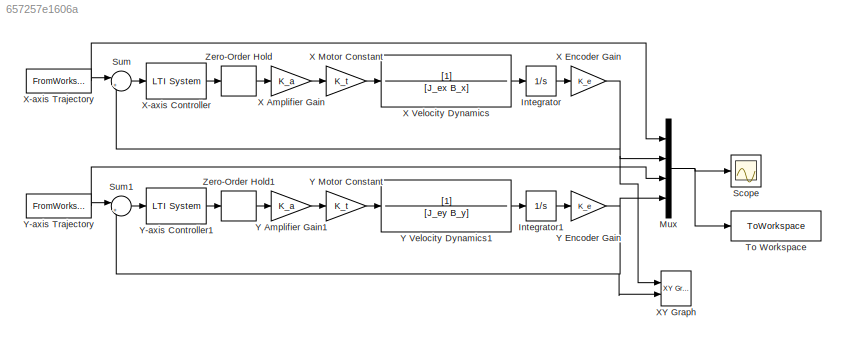
MODEL slx_657257e1606a
KIND model
CONFIG AbsTol = auto
CONFIG EnableMultiTasking = off
CONFIG FixedStep = auto
CONFIG MaxStep = auto
CONFIG MinStep = auto
CONFIG RelTol = 1e-3
CONFIG SampleTimeConstraint = Unconstrained
CONFIG SolverName = VariableStepAuto
CONFIG StartTime = 0.0
CONFIG StopTime = 2
BLOCK [Integrator] Integrator
  Ports = [1, 1]
BLOCK [Integrator] Integrator1
  Ports = [1, 1]
BLOCK [Mux] Mux
  DisplayOption = bar
  Ports = [4, 1]
BLOCK [Scope] Scope
  Floating = off
  NumInputPorts = 1
  Ports = [1]
  ScopeSpecificationString = Simulink.scopes.TimeScopeBlockCfg('CurrentConfiguration', extmgr.ConfigurationSet(extmgr.Configuration('Core','General UI',true),extmgr.Configuration('Core','Source UI',true),extmgr.Configuration('Sources','WiredSimulink',true),extmgr.Configuration('Visuals','Time Domain',true,'SerializedDisplays',{struct('MinYLimReal','-15.09066','MaxYLimReal','135.07444','YLabelReal','','MinYLimMag','0.00000','M...<+1457ch>
BLOCK [Sum] Sum
  Inputs = |+-
  Ports = [2, 1]
BLOCK [Sum] Sum1
  Inputs = |+-
  Ports = [2, 1]
BLOCK [ToWorkspace] To Workspace
  FixptAsFi = on
  MaxDataPoints = inf
  Ports = [1]
  SampleTime = -1
  SaveFormat = Timeseries
  VariableName = simout
BLOCK [Gain] X Amplifier Gain
  Gain = K_a
BLOCK [Gain] X Encoder Gain
  Gain = K_e
BLOCK [Gain] X Motor Constant
  Gain = K_t
BLOCK [TransferFcn] X Velocity Dynamics
  Denominator = [J_ex B_x]
BLOCK [Reference] X-axis Controller  REF=cstblocks/LTI System
  Ports = [1, 1]
  SourceBlock = cstblocks/LTI System
  SourceProductBaseCode = CT
  SourceType = LTI Block
BLOCK [FromWorkspace] X-axis Trajectory
  VariableName = xr
BLOCK [Reference] XY Graph  REF=simulink/Sinks/XY Graph
  Commented = on
  Ports = [2]
  SourceBlock = simulink/Sinks/XY Graph
  SourceProductBaseCode = SL
  SourceType = XY scope.
BLOCK [Gain] Y Amplifier Gain1
  Gain = K_a
BLOCK [Gain] Y Encoder Gain
  Gain = K_e
BLOCK [Gain] Y Motor Constant
  Gain = K_t
BLOCK [TransferFcn] Y Velocity Dynamics1
  Denominator = [J_ey B_y]
BLOCK [Reference] Y-axis Controller1  REF=cstblocks/LTI System
  Ports = [1, 1]
  SourceBlock = cstblocks/LTI System
  SourceProductBaseCode = CT
  SourceType = LTI Block
BLOCK [FromWorkspace] Y-axis Trajectory
  VariableName = yr
BLOCK [ZeroOrderHold] Zero-Order Hold
  SampleTime = T_i
BLOCK [ZeroOrderHold] Zero-Order Hold1
  SampleTime = T_i
LINE Integrator1:1 -> Y Encoder Gain:1
LINE Integrator:1 -> X Encoder Gain:1
NET Mux:1 -> Scope:1, To Workspace:1
LINE Sum1:1 -> Y-axis Controller1:1
LINE Sum:1 -> X-axis Controller:1
LINE X Amplifier Gain:1 -> X Motor Constant:1
NET X Encoder Gain:1 -> Mux:2, Sum:2, XY Graph:1
LINE X Motor Constant:1 -> X Velocity Dynamics:1
LINE X Velocity Dynamics:1 -> Integrator:1
LINE X-axis Controller:1 -> Zero-Order Hold:1
NET X-axis Trajectory:1 -> Mux:1, Sum:1
LINE Y Amplifier Gain1:1 -> Y Motor Constant:1
NET Y Encoder Gain:1 -> Mux:4, Sum1:2, XY Graph:2
LINE Y Motor Constant:1 -> Y Velocity Dynamics1:1
LINE Y Velocity Dynamics1:1 -> Integrator1:1
LINE Y-axis Controller1:1 -> Zero-Order Hold1:1
NET Y-axis Trajectory:1 -> Mux:3, Sum1:1
LINE Zero-Order Hold1:1 -> Y Amplifier Gain1:1
LINE Zero-Order Hold:1 -> X Amplifier Gain:1
note: NET lines group one-source signal fan-out (src -> all destinations, sorted); 1:1 wires keep LINE
